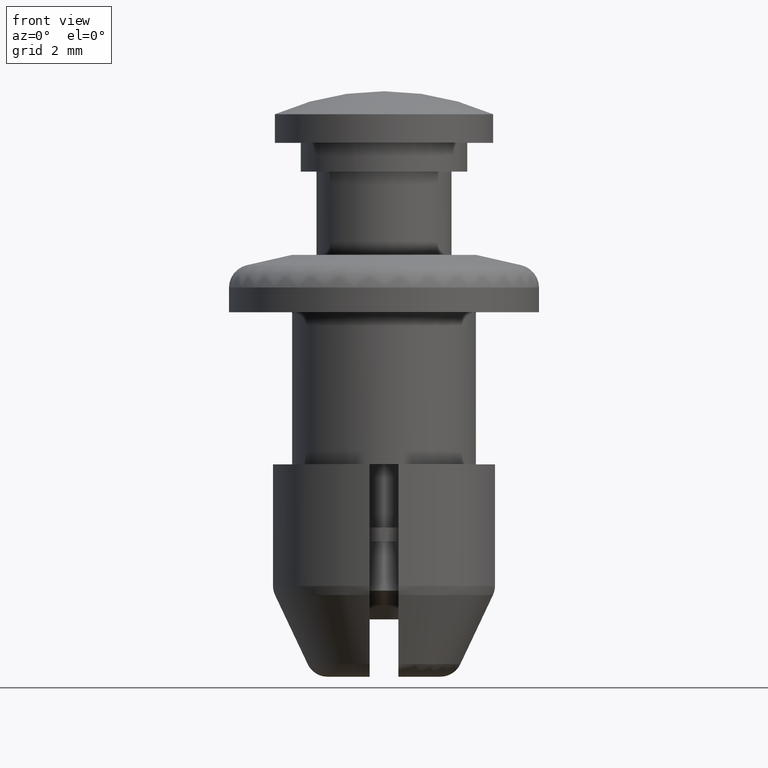
[diagram: clean part render]
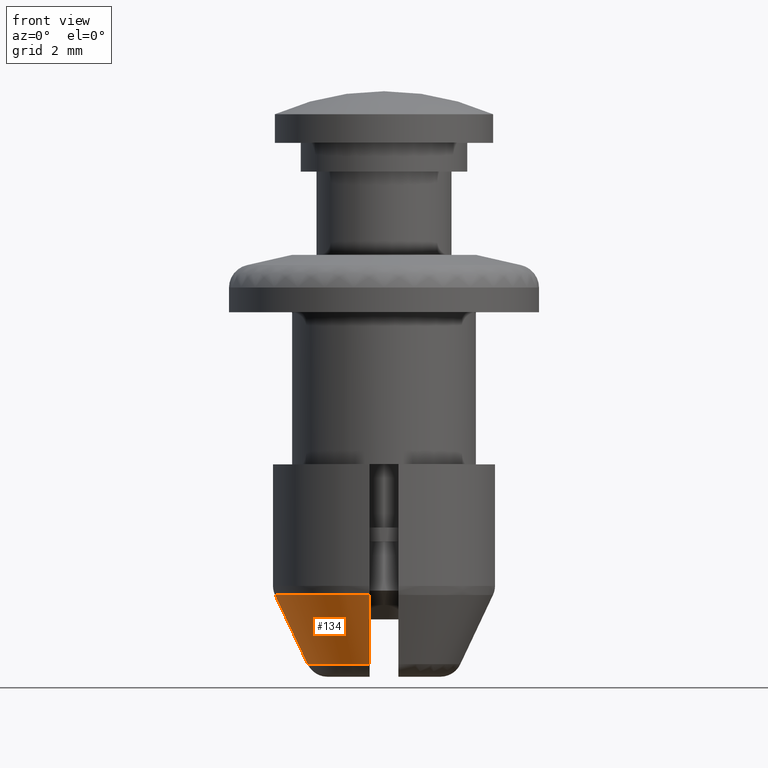
[diagram: same view with one face highlighted and labeled with its STEP entity id]
A machine part, front view. The second image highlights one B-rep face of the part: STEP entity #134.
In plain terms, the highlighted face is a freeform B-spline surface patch.
Its self-contained STEP definition (entity closure, byte-faithful):
#134=ADVANCED_FACE('',(#412),#411,.T.);
#411=( BOUNDED_SURFACE() B_SPLINE_SURFACE( 2,1,((#1129,#1130),(#1131,#1132),(#1133,#1134)), .UNSPECIFIED.,.F.,.F.,.F.) B_SPLINE_SURFACE_WITH_KNOTS((3,3),(2,2),(0.00000000000E+00,1.00000000000E+00),(0.00000000000E+00,1.00000000000E+00), .UNSPECIFIED. ) GEOMETRIC_REPRESENTATION_ITEM() RATIONAL_B_SPLINE_SURFACE(((1.00000000000E+00,1.00000000000E+00),(7.93286915379E-01,7.93286915379E-01),(1.00000000000E+00,1.00000000000E+00))) REPRESENTATION_ITEM('') SURFACE() );
#412=FACE_OUTER_BOUND('',#1135,.T.);
#1129=CARTESIAN_POINT('',(-2.68268514906E+00,-3.52884453567E-01,-1.42592680097E+01));
#1130=CARTESIAN_POINT('',(-3.79721476363E+00,-4.99491361261E-01,-1.18505161775E+01));
#1131=CARTESIAN_POINT('',(-2.41184620714E+00,-2.41184624663E+00,-1.42592680097E+01));
#1132=CARTESIAN_POINT('',(-3.41385496862E+00,-3.41385502452E+00,-1.18505161775E+01));
#1133=CARTESIAN_POINT('',(-3.52884409643E-01,-2.68268515484E+00,-1.42592680097E+01));
#1134=CARTESIAN_POINT('',(-4.99491299089E-01,-3.79721477180E+00,-1.18505161775E+01));
#1135=EDGE_LOOP('',(#1658,#1659,#1660,#1661));
#1658=ORIENTED_EDGE('',*,*,#1954,.F.);
#1659=ORIENTED_EDGE('',*,*,#1958,.F.);
#1660=ORIENTED_EDGE('',*,*,#1961,.F.);
#1661=ORIENTED_EDGE('',*,*,#2012,.T.);
#1954=EDGE_CURVE('',#2190,#2197,#2198,.T.);
#1958=EDGE_CURVE('',#2217,#2190,#2224,.T.);
#1961=EDGE_CURVE('',#2238,#2217,#2245,.T.);
#2012=EDGE_CURVE('',#2238,#2197,#2592,.T.);
#2190=VERTEX_POINT('',#3457);
#2197=VERTEX_POINT('',#3464);
#2198=(BOUNDED_CURVE() B_SPLINE_CURVE(3,(#3465,#3466,#3467,#3468),.UNSPECIFIED.,.F.,.F.) B_SPLINE_CURVE_WITH_KNOTS((4,4),(3.45102029413E-03,6.11390777930E-03),.UNSPECIFIED.) CURVE() GEOMETRIC_REPRESENTATION_ITEM() RATIONAL_B_SPLINE_CURVE((1.00000000000E+00,1.00000000000E+00,1.00000000000E+00,1.00000000000E+00)) REPRESENTATION_ITEM('') );
#2217=VERTEX_POINT('',#3480);
#2224=CIRCLE('',#3492,2.70602087899E+00);
#2238=VERTEX_POINT('',#3498);
#2245=(BOUNDED_CURVE() B_SPLINE_CURVE(3,(#3505,#3506,#3507,#3508),.UNSPECIFIED.,.F.,.F.) B_SPLINE_CURVE_WITH_KNOTS((4,4),(5.32152075698E-03,7.98447049075E-03),.UNSPECIFIED.) CURVE() GEOMETRIC_REPRESENTATION_ITEM() RATIONAL_B_SPLINE_CURVE((1.00000000000E+00,1.00000000000E+00,1.00000000000E+00,1.00000000000E+00)) REPRESENTATION_ITEM('') );
#2592=CIRCLE('',#3732,3.82970000000E+00);
#3457=CARTESIAN_POINT('',(-2.65942644146E+00,-5.00000000000E-01,-1.42587841873E+01));
#3464=CARTESIAN_POINT('',(-3.79692007949E+00,-5.00000000000E-01,-1.18510000000E+01));
#3465=CARTESIAN_POINT('',(-2.65942644146E+00,-5.00000000000E-01,-1.42587841873E+01));
#3466=CARTESIAN_POINT('',(-3.04018866588E+00,-5.00000000000E-01,-1.34569474666E+01));
#3467=CARTESIAN_POINT('',(-3.41887760360E+00,-5.00000000000E-01,-1.26541238932E+01));
#3468=CARTESIAN_POINT('',(-3.79692007949E+00,-5.00000000000E-01,-1.18510000000E+01));
#3480=CARTESIAN_POINT('',(-5.00000000000E-01,-2.65942644146E+00,-1.42587841873E+01));
#3489=CARTESIAN_POINT('',(0.00000000000E+00,0.00000000000E+00,-1.42587841873E+01));
#3490=DIRECTION('',(0.00000000000E+00,0.00000000000E+00,-1.00000000000E+00));
#3491=DIRECTION('',(1.00000000000E+00,-0.00000000000E+00,-0.00000000000E+00));
#3492=AXIS2_PLACEMENT_3D('',#3489,#3490,#3491);
#3498=CARTESIAN_POINT('',(-5.00000000000E-01,-3.79692007949E+00,-1.18510000000E+01));
#3505=CARTESIAN_POINT('',(-5.00000000000E-01,-3.79692007949E+00,-1.18510000000E+01));
#3506=CARTESIAN_POINT('',(-5.00000000000E-01,-3.41887801935E+00,-1.26541230100E+01));
#3507=CARTESIAN_POINT('',(-5.00000000000E-01,-3.04019102778E+00,-1.34569424928E+01));
#3508=CARTESIAN_POINT('',(-5.00000000000E-01,-2.65942644146E+00,-1.42587841873E+01));
#3729=CARTESIAN_POINT('',(0.00000000000E+00,0.00000000000E+00,-1.18510000000E+01));
#3730=DIRECTION('',(0.00000000000E+00,0.00000000000E+00,-1.00000000000E+00));
#3731=DIRECTION('',(1.00000000000E+00,-0.00000000000E+00,-0.00000000000E+00));
#3732=AXIS2_PLACEMENT_3D('',#3729,#3730,#3731);